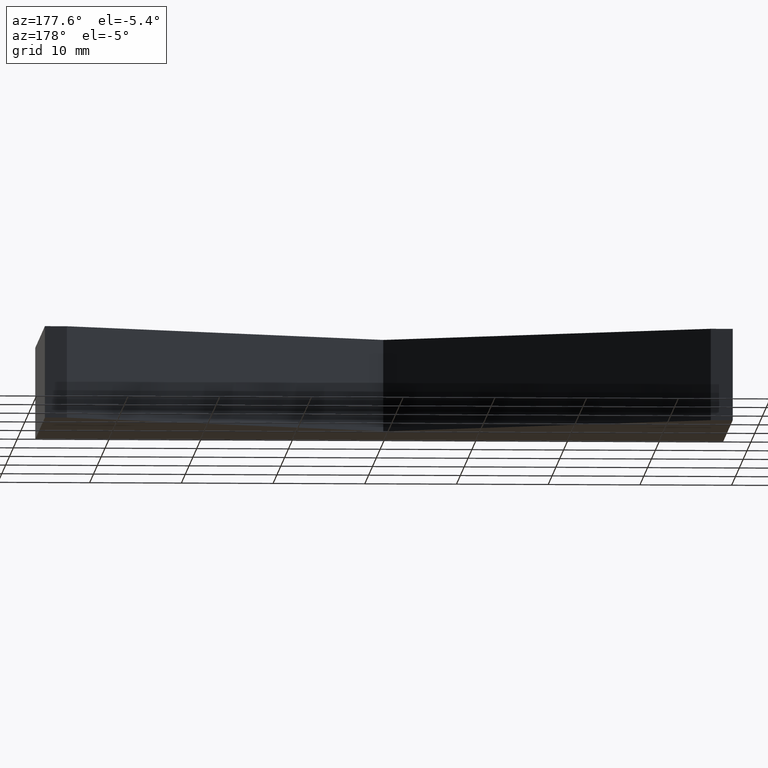
[diagram: clean part render]
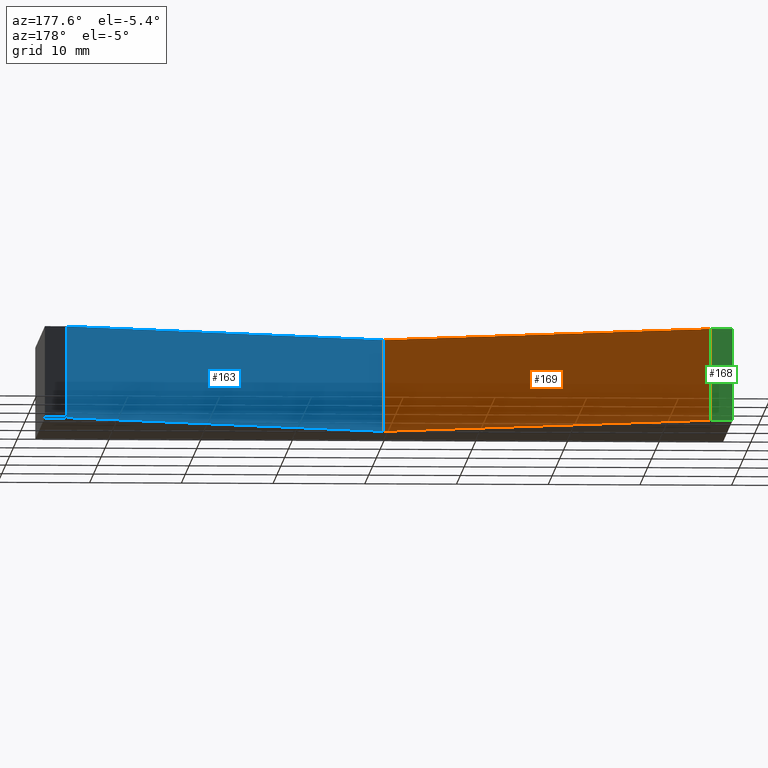
[diagram: same view with three faces highlighted in distinct colors, each labeled with its STEP entity id]
A machine part, auxiliary view with three faces highlighted in distinct colors.
Their STEP definitions:

[orange] entity #169 — the highlighted planar face has unit normal (0.3796, 0.9252, 0).
#23=FACE_OUTER_BOUND('',#32,.T.);
#32=EDGE_LOOP('',(#142,#143,#144,#145));
#35=LINE('',#250,#56);
#43=LINE('',#265,#64);
#53=LINE('',#285,#74);
#54=LINE('',#287,#75);
#56=VECTOR('',#208,10.);
#64=VECTOR('',#218,10.);
#74=VECTOR('',#238,10.);
#75=VECTOR('',#241,10.);
#76=VERTEX_POINT('',#246);
#78=VERTEX_POINT('',#249);
#83=VERTEX_POINT('',#261);
#89=VERTEX_POINT('',#283);
#91=EDGE_CURVE('',#78,#76,#35,.T.);
#99=EDGE_CURVE('',#83,#78,#43,.T.);
#109=EDGE_CURVE('',#76,#89,#53,.T.);
#110=EDGE_CURVE('',#89,#83,#54,.T.);
#142=ORIENTED_EDGE('',*,*,#110,.T.);
#143=ORIENTED_EDGE('',*,*,#99,.T.);
#144=ORIENTED_EDGE('',*,*,#91,.T.);
#145=ORIENTED_EDGE('',*,*,#109,.T.);
#160=PLANE('',#201);
#169=ADVANCED_FACE('',(#23),#160,.T.);
#201=AXIS2_PLACEMENT_3D('',#286,#239,#240);
#208=DIRECTION('',(-0.925168618374746,0.379556356256306,0.));
#218=DIRECTION('',(0.,0.,-1.));
#238=DIRECTION('',(0.,0.,1.));
#239=DIRECTION('center_axis',(0.379556356256306,0.925168618374746,0.));
#240=DIRECTION('ref_axis',(0.,0.,1.));
#241=DIRECTION('',(0.925168618374746,-0.379556356256306,0.));
#246=CARTESIAN_POINT('',(-35.1,12.5,-5.));
#249=CARTESIAN_POINT('',(0.,-1.9,-5.));
#250=CARTESIAN_POINT('',(0.,-1.9,-5.));
#261=CARTESIAN_POINT('',(0.,-1.9,5.));
#265=CARTESIAN_POINT('',(0.,-1.9,0.));
#283=CARTESIAN_POINT('',(-35.1,12.5,5.));
#285=CARTESIAN_POINT('',(-35.1,12.5,0.));
#286=CARTESIAN_POINT('Origin',(-35.1,12.5,0.));
#287=CARTESIAN_POINT('',(0.,-1.9,5.));

[blue] entity #163 — the highlighted planar face has unit normal (-0.3796, 0.9252, 0).
#17=FACE_OUTER_BOUND('',#26,.T.);
#26=EDGE_LOOP('',(#118,#119,#120,#121));
#36=LINE('',#252,#57);
#41=LINE('',#263,#62);
#42=LINE('',#264,#63);
#43=LINE('',#265,#64);
#57=VECTOR('',#209,10.);
#62=VECTOR('',#216,10.);
#63=VECTOR('',#217,10.);
#64=VECTOR('',#218,10.);
#78=VERTEX_POINT('',#249);
#79=VERTEX_POINT('',#251);
#83=VERTEX_POINT('',#261);
#84=VERTEX_POINT('',#262);
#92=EDGE_CURVE('',#79,#78,#36,.T.);
#97=EDGE_CURVE('',#83,#84,#41,.T.);
#98=EDGE_CURVE('',#79,#84,#42,.T.);
#99=EDGE_CURVE('',#83,#78,#43,.T.);
#118=ORIENTED_EDGE('',*,*,#97,.T.);
#119=ORIENTED_EDGE('',*,*,#98,.F.);
#120=ORIENTED_EDGE('',*,*,#92,.T.);
#121=ORIENTED_EDGE('',*,*,#99,.F.);
#154=PLANE('',#195);
#163=ADVANCED_FACE('',(#17),#154,.T.);
#195=AXIS2_PLACEMENT_3D('',#260,#214,#215);
#209=DIRECTION('',(-0.925168618374746,-0.379556356256306,0.));
#214=DIRECTION('center_axis',(-0.379556356256306,0.925168618374746,0.));
#215=DIRECTION('ref_axis',(0.,0.,1.));
#216=DIRECTION('',(0.925168618374746,0.379556356256306,0.));
#217=DIRECTION('',(0.,0.,1.));
#218=DIRECTION('',(0.,0.,-1.));
#249=CARTESIAN_POINT('',(0.,-1.9,-5.));
#251=CARTESIAN_POINT('',(35.1,12.5,-5.));
#252=CARTESIAN_POINT('',(35.1,12.5,-5.));
#260=CARTESIAN_POINT('Origin',(0.,-1.9,0.));
#261=CARTESIAN_POINT('',(0.,-1.9,5.));
#262=CARTESIAN_POINT('',(35.1,12.5,5.));
#263=CARTESIAN_POINT('',(35.1,12.5,5.));
#264=CARTESIAN_POINT('',(35.1,12.5,0.));
#265=CARTESIAN_POINT('',(0.,-1.9,0.));

[green] entity #168 — the highlighted planar face has unit normal (0, 1, 0).
#22=FACE_OUTER_BOUND('',#31,.T.);
#31=EDGE_LOOP('',(#138,#139,#140,#141));
#34=LINE('',#248,#55);
#51=LINE('',#281,#72);
#52=LINE('',#284,#73);
#53=LINE('',#285,#74);
#55=VECTOR('',#207,10.);
#72=VECTOR('',#234,10.);
#73=VECTOR('',#237,10.);
#74=VECTOR('',#238,10.);
#76=VERTEX_POINT('',#246);
#77=VERTEX_POINT('',#247);
#88=VERTEX_POINT('',#279);
#89=VERTEX_POINT('',#283);
#90=EDGE_CURVE('',#76,#77,#34,.T.);
#107=EDGE_CURVE('',#77,#88,#51,.T.);
#108=EDGE_CURVE('',#88,#89,#52,.T.);
#109=EDGE_CURVE('',#76,#89,#53,.T.);
#138=ORIENTED_EDGE('',*,*,#108,.T.);
#139=ORIENTED_EDGE('',*,*,#109,.F.);
#140=ORIENTED_EDGE('',*,*,#90,.T.);
#141=ORIENTED_EDGE('',*,*,#107,.T.);
#159=PLANE('',#200);
#168=ADVANCED_FACE('',(#22),#159,.T.);
#200=AXIS2_PLACEMENT_3D('',#282,#235,#236);
#207=DIRECTION('',(-1.,0.,0.));
#234=DIRECTION('',(0.,0.,1.));
#235=DIRECTION('center_axis',(0.,1.,0.));
#236=DIRECTION('ref_axis',(0.,0.,1.));
#237=DIRECTION('',(1.,0.,0.));
#238=DIRECTION('',(0.,0.,1.));
#246=CARTESIAN_POINT('',(-35.1,12.5,-5.));
#247=CARTESIAN_POINT('',(-37.5,12.5,-5.));
#248=CARTESIAN_POINT('',(-35.1,12.5,-5.));
#279=CARTESIAN_POINT('',(-37.5,12.5,5.));
#281=CARTESIAN_POINT('',(-37.5,12.5,0.));
#282=CARTESIAN_POINT('Origin',(-37.5,12.5,0.));
#283=CARTESIAN_POINT('',(-35.1,12.5,5.));
#284=CARTESIAN_POINT('',(-35.1,12.5,5.));
#285=CARTESIAN_POINT('',(-35.1,12.5,0.));